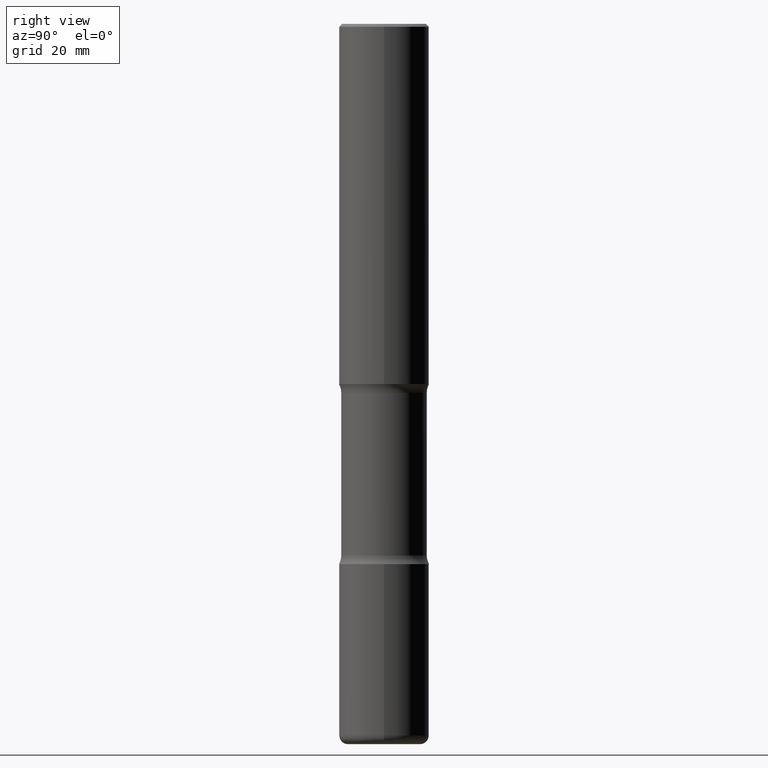
[diagram: clean part render]
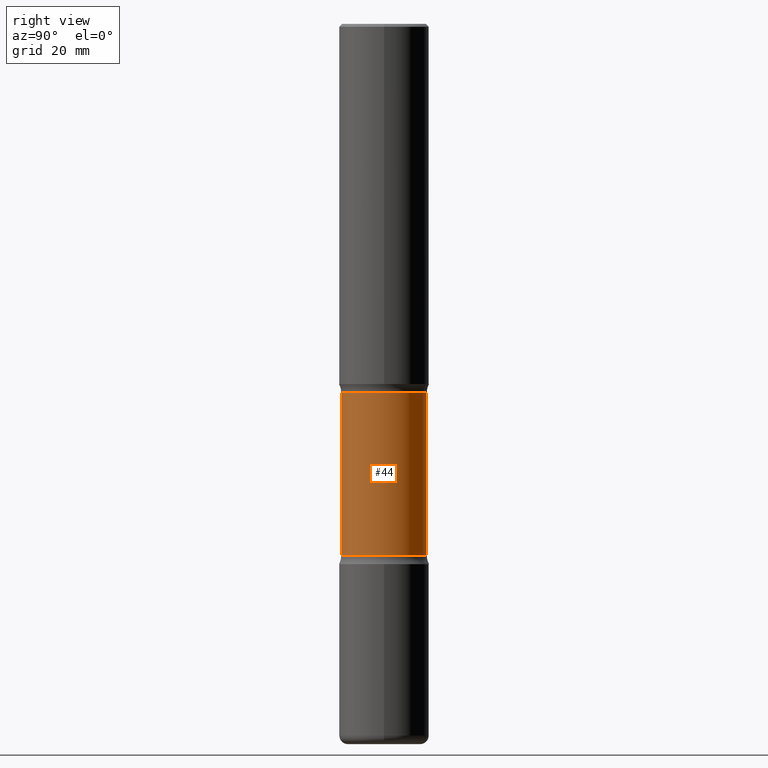
[diagram: same view with one face highlighted and labeled with its STEP entity id]
A machine part, right view. The second image highlights one B-rep face of the part: STEP entity #44.
In plain terms, the highlighted cylindrical surface (partial cylindrical patch) has radius 7.5406 mm, axis along (0, -0, -1).
Its self-contained STEP definition (entity closure, byte-faithful):
#6 = CYLINDRICAL_SURFACE ( 'NONE', #286, 0.2968750000000000000 ) ;
#21 = EDGE_CURVE ( 'NONE', #257, #173, #409, .T. ) ;
#23 = DIRECTION ( 'NONE',  ( 6.982962677686265133E-15, 1.000000000000000000, -3.680805717779217644E-15 ) ) ;
#44 = ADVANCED_FACE ( 'NONE', ( #169 ), #6, .T. ) ;
#87 = CARTESIAN_POINT ( 'NONE',  ( -2.090307983695953569E-15, -0.2968750000000091038, -2.560515364784489822 ) ) ;
#92 = DIRECTION ( 'NONE',  ( 2.521457479434076939E-29, -3.382661233743975076E-15, -1.000000000000000000 ) ) ;
#93 = VERTEX_POINT ( 'NONE', #121 ) ;
#108 = DIRECTION ( 'NONE',  ( 2.521457479434076939E-29, -3.382661233743974681E-15, -1.000000000000000000 ) ) ;
#121 = CARTESIAN_POINT ( 'NONE',  ( -2.090307983695922804E-15, -0.2968750000000128786, -3.689484635215507069 ) ) ;
#133 = EDGE_CURVE ( 'NONE', #392, #93, #523, .T. ) ;
#169 = FACE_OUTER_BOUND ( 'NONE', #423, .T. ) ;
#173 = VERTEX_POINT ( 'NONE', #87 ) ;
#175 = AXIS2_PLACEMENT_3D ( 'NONE', #384, #334, #518 ) ;
#176 = CARTESIAN_POINT ( 'NONE',  ( 1.232232987248685960E-28, -1.732138156284176685E-14, -5.000000000000000000 ) ) ;
#208 = VECTOR ( 'NONE', #412, 39.37007874015748143 ) ;
#232 = LINE ( 'NONE', #542, #456 ) ;
#244 = ORIENTED_EDGE ( 'NONE', *, *, #133, .F. ) ;
#253 = ORIENTED_EDGE ( 'NONE', *, *, #471, .F. ) ;
#257 = VERTEX_POINT ( 'NONE', #332 ) ;
#271 = ORIENTED_EDGE ( 'NONE', *, *, #21, .T. ) ;
#285 = ORIENTED_EDGE ( 'NONE', *, *, #546, .T. ) ;
#286 = AXIS2_PLACEMENT_3D ( 'NONE', #176, #342, #524 ) ;
#305 = CARTESIAN_POINT ( 'NONE',  ( 9.017921104037724021E-29, -1.288835204215942242E-14, -3.689484635215508401 ) ) ;
#315 = AXIS2_PLACEMENT_3D ( 'NONE', #305, #92, #23 ) ;
#332 = CARTESIAN_POINT ( 'NONE',  ( 2.073067044938171961E-15, 0.2968749999999909517, -2.560515364784492043 ) ) ;
#334 = DIRECTION ( 'NONE',  ( 2.521457479434076939E-29, -3.382661233743975076E-15, -1.000000000000000000 ) ) ;
#342 = DIRECTION ( 'NONE',  ( 2.521457479434076939E-29, -3.382661233743975076E-15, -1.000000000000000000 ) ) ;
#360 = LINE ( 'NONE', #494, #208 ) ;
#366 = CARTESIAN_POINT ( 'NONE',  ( 2.073067044938200360E-15, 0.2968749999999871214, -3.689484635215509289 ) ) ;
#384 = CARTESIAN_POINT ( 'NONE',  ( 6.171273093058203090E-29, -9.069431456984199816E-15, -2.560515364784490711 ) ) ;
#392 = VERTEX_POINT ( 'NONE', #366 ) ;
#409 = CIRCLE ( 'NONE', #175, 0.2968750000000000000 ) ;
#412 = DIRECTION ( 'NONE',  ( 2.521457479434076939E-29, -3.382661233743974681E-15, -1.000000000000000000 ) ) ;
#423 = EDGE_LOOP ( 'NONE', ( #271, #285, #244, #253 ) ) ;
#456 = VECTOR ( 'NONE', #108, 39.37007874015748143 ) ;
#471 = EDGE_CURVE ( 'NONE', #257, #392, #232, .T. ) ;
#494 = CARTESIAN_POINT ( 'NONE',  ( -2.036710343088299976E-15, -0.2968750000000173195, -4.999999999999999112 ) ) ;
#518 = DIRECTION ( 'NONE',  ( 6.982962677686266711E-15, 1.000000000000000000, -3.680805717779217644E-15 ) ) ;
#523 = CIRCLE ( 'NONE', #315, 0.2968750000000000000 ) ;
#524 = DIRECTION ( 'NONE',  ( 6.982962677686266711E-15, 1.000000000000000000, -3.680805717779217644E-15 ) ) ;
#542 = CARTESIAN_POINT ( 'NONE',  ( 2.073067044938233492E-15, 0.2968749999999827360, -5.000000000000000888 ) ) ;
#546 = EDGE_CURVE ( 'NONE', #173, #93, #360, .T. ) ;